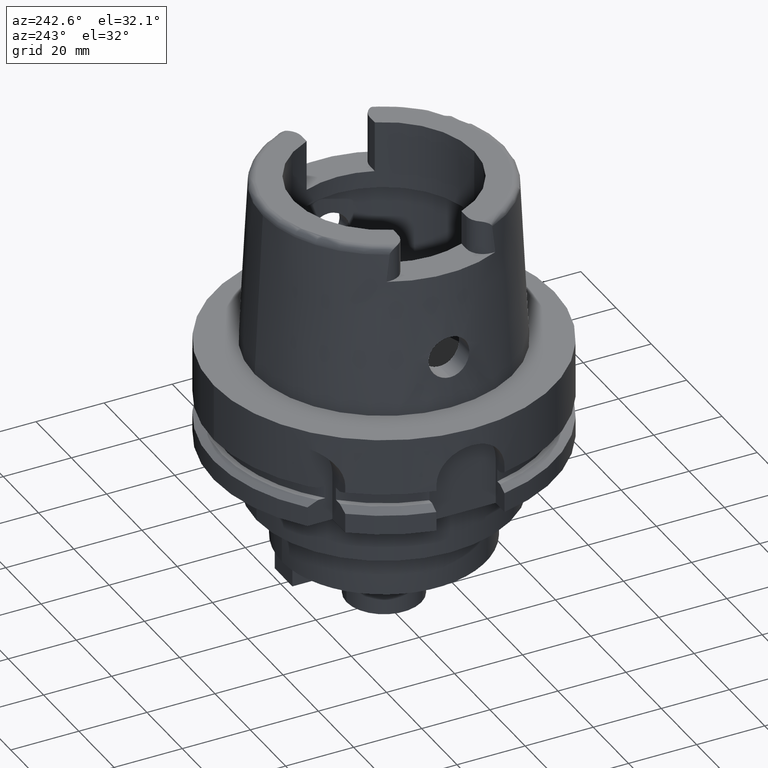
[diagram: clean part render]
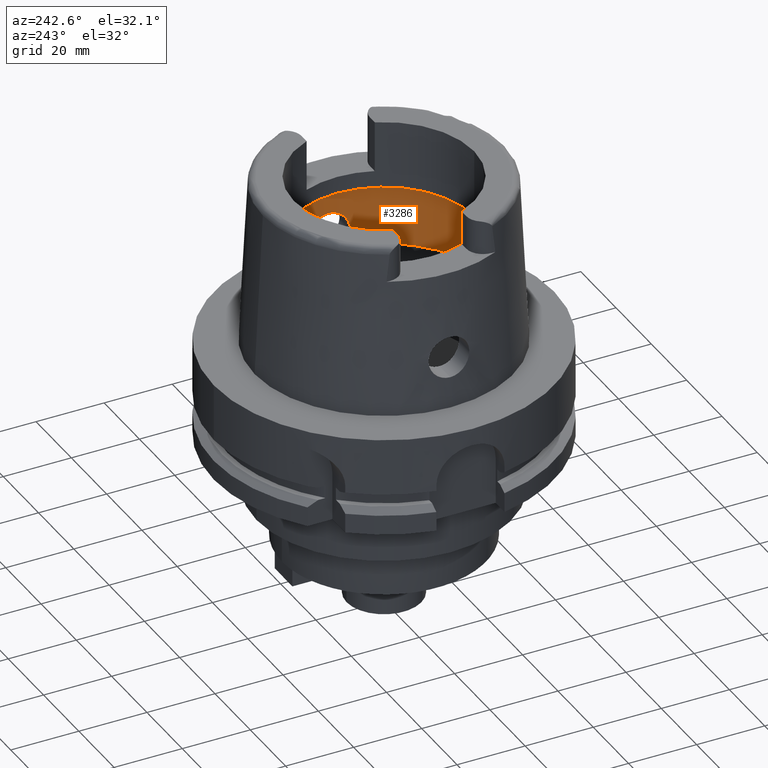
[diagram: same view with one face highlighted and labeled with its STEP entity id]
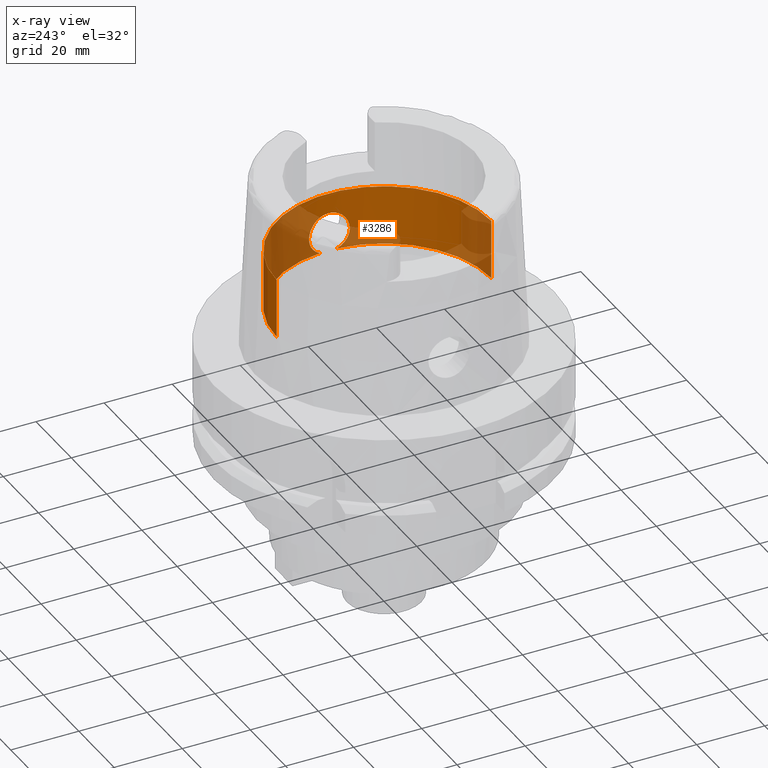
[diagram: x-ray of the same camera — body ghosted, the highlighted face saturated]
A machine part, auxiliary view. The second image highlights one B-rep face of the part: STEP entity #3286.
The next image is the same camera in x-ray: the body ghosted, the highlighted face saturated — about 41% of this face is hidden behind the body in this view.
In plain terms, the highlighted cylindrical surface (partial cylindrical patch) has radius 31.5 mm, axis along (0, 0, 1).
Its self-contained STEP definition (entity closure, byte-faithful):
#540=CARTESIAN_POINT('',(0.E0,0.E0,2.711662432703E1));
#541=DIRECTION('',(0.E0,0.E0,1.E0));
#542=DIRECTION('',(0.E0,-1.E0,0.E0));
#543=AXIS2_PLACEMENT_3D('',#540,#541,#542);
#589=DIRECTION('',(0.E0,4.980251297750E-14,1.E0));
#590=VECTOR('',#589,1.762E1);
#591=CARTESIAN_POINT('',(0.E0,-3.15E1,9.496624327026E0));
#592=LINE('',#591,#590);
#690=CARTESIAN_POINT('',(0.E0,0.E0,9.496624327026E0));
#691=DIRECTION('',(0.E0,0.E0,-1.E0));
#692=DIRECTION('',(9.971171061384E-1,-7.587803796965E-2,0.E0));
#693=AXIS2_PLACEMENT_3D('',#690,#691,#692);
#714=CARTESIAN_POINT('',(0.E0,0.E0,9.496624327026E0));
#715=DIRECTION('',(0.E0,0.E0,-1.E0));
#716=DIRECTION('',(0.E0,1.E0,0.E0));
#717=AXIS2_PLACEMENT_3D('',#714,#715,#716);
#739=CARTESIAN_POINT('',(3.140918884336E1,-2.390158196044E0,9.496624327026E0));
#740=CARTESIAN_POINT('',(3.137370312036E1,-2.856477863367E0,9.699150529317E0));
#741=CARTESIAN_POINT('',(3.128859458119E1,-3.707412876181E0,1.020431882019E1));
#742=CARTESIAN_POINT('',(3.113926066382E1,-4.784627919914E0,1.127555019703E1));
#743=CARTESIAN_POINT('',(3.100879776263E1,-5.551612681812E0,1.256702117098E1));
#744=CARTESIAN_POINT('',(3.092772269701E1,-5.978311389254E0,1.399886092051E1));
#745=CARTESIAN_POINT('',(3.091521048198E1,-6.041257588446E0,1.549483242708E1));
#746=CARTESIAN_POINT('',(3.097445191936E1,-5.736553616047E0,1.695990507440E1));
#747=CARTESIAN_POINT('',(3.109228505274E1,-5.074504366827E0,1.831806352372E1));
#748=CARTESIAN_POINT('',(3.123925358136E1,-4.095840233768E0,1.946955456567E1));
#749=CARTESIAN_POINT('',(3.137858544291E1,-2.868827681278E0,2.034071145983E1));
#750=CARTESIAN_POINT('',(3.147663714279E1,-1.469376456318E0,2.087911052173E1));
#751=CARTESIAN_POINT('',(3.15E1,-4.998497493267E-1,2.1E1));
#752=CARTESIAN_POINT('',(3.15E1,0.E0,2.1E1));
#757=CARTESIAN_POINT('',(3.15E1,0.E0,2.1E1));
#758=CARTESIAN_POINT('',(3.15E1,5.033576914937E-1,2.1E1));
#759=CARTESIAN_POINT('',(3.147630930227E1,1.478664365038E0,2.087743277308E1));
#760=CARTESIAN_POINT('',(3.137729924531E1,2.883343394761E0,2.033342320483E1));
#761=CARTESIAN_POINT('',(3.123721546767E1,4.111250775499E0,1.945577468142E1));
#762=CARTESIAN_POINT('',(3.109016398764E1,5.087244519043E0,1.829870645567E1));
#763=CARTESIAN_POINT('',(3.097303361381E1,5.744032363056E0,1.693770648550E1));
#764=CARTESIAN_POINT('',(3.091488830673E1,6.042871183868E0,1.547277542369E1));
#765=CARTESIAN_POINT('',(3.092842006262E1,5.974770125388E0,1.397946949059E1));
#766=CARTESIAN_POINT('',(3.101001757234E1,5.544881644942E0,1.255256424637E1));
#767=CARTESIAN_POINT('',(3.114038345159E1,4.777254906822E0,1.126678843558E1));
#768=CARTESIAN_POINT('',(3.128913788071E1,3.702452680714E0,1.020106855233E1));
#769=CARTESIAN_POINT('',(3.137385231715E1,2.854517260859E0,9.698299024635E0));
#770=CARTESIAN_POINT('',(3.140918884336E1,2.390158196044E0,9.496624327026E0));
#775=DIRECTION('',(0.E0,-4.980251297750E-14,1.E0));
#776=VECTOR('',#775,1.762E1);
#777=CARTESIAN_POINT('',(0.E0,3.15E1,9.496624327026E0));
#778=LINE('',#777,#776);
#2543=CARTESIAN_POINT('',(0.E0,3.15E1,2.711662432703E1));
#2544=VERTEX_POINT('',#2543);
#2545=CARTESIAN_POINT('',(0.E0,-3.15E1,2.711662432703E1));
#2546=VERTEX_POINT('',#2545);
#2549=CARTESIAN_POINT('',(0.E0,-3.15E1,9.496624327026E0));
#2550=VERTEX_POINT('',#2549);
#2551=CARTESIAN_POINT('',(0.E0,3.15E1,9.496624327026E0));
#2552=VERTEX_POINT('',#2551);
#2557=VERTEX_POINT('',#739);
#2558=VERTEX_POINT('',#752);
#2560=VERTEX_POINT('',#770);
#3271=CARTESIAN_POINT('',(0.E0,0.E0,-8.44E1));
#3272=DIRECTION('',(0.E0,0.E0,1.E0));
#3273=DIRECTION('',(0.E0,1.E0,0.E0));
#3274=AXIS2_PLACEMENT_3D('',#3271,#3272,#3273);
#3275=CYLINDRICAL_SURFACE('',#3274,3.15E1);
#3276=ORIENTED_EDGE('',*,*,#3260,.T.);
#3278=ORIENTED_EDGE('',*,*,#3277,.T.);
#3279=ORIENTED_EDGE('',*,*,#3248,.F.);
#3280=ORIENTED_EDGE('',*,*,#3178,.T.);
#3281=ORIENTED_EDGE('',*,*,#3148,.F.);
#3282=ORIENTED_EDGE('',*,*,#3175,.F.);
#3283=ORIENTED_EDGE('',*,*,#3242,.F.);
#3284=EDGE_LOOP('',(#3276,#3278,#3279,#3280,#3281,#3282,#3283));
#3285=FACE_OUTER_BOUND('',#3284,.F.);
#544=CIRCLE('',#543,3.15E1);
#694=CIRCLE('',#693,3.15E1);
#718=CIRCLE('',#717,3.15E1);
#753=B_SPLINE_CURVE_WITH_KNOTS('',3,(#739,#740,#741,#742,#743,#744,#745,#746,
#747,#748,#749,#750,#751,#752),.UNSPECIFIED.,.F.,.F.,(4,1,1,1,1,1,1,1,1,1,1,4),(
0.E0,9.090909090909E-2,1.818181818182E-1,2.727272727273E-1,3.636363636364E-1,
4.545454545455E-1,5.454545454545E-1,6.363636363636E-1,7.272727272727E-1,
8.181818181818E-1,9.090909090909E-1,1.E0),.UNSPECIFIED.);
#771=B_SPLINE_CURVE_WITH_KNOTS('',3,(#757,#758,#759,#760,#761,#762,#763,#764,
#765,#766,#767,#768,#769,#770),.UNSPECIFIED.,.F.,.F.,(4,1,1,1,1,1,1,1,1,1,1,4),(
0.E0,9.090909090909E-2,1.818181818182E-1,2.727272727273E-1,3.636363636364E-1,
4.545454545455E-1,5.454545454545E-1,6.363636363636E-1,7.272727272727E-1,
8.181818181818E-1,9.090909090909E-1,1.E0),.UNSPECIFIED.);
#3148=EDGE_CURVE('',#2546,#2544,#544,.T.);
#3175=EDGE_CURVE('',#2550,#2546,#592,.T.);
#3178=EDGE_CURVE('',#2552,#2544,#778,.T.);
#3242=EDGE_CURVE('',#2557,#2550,#694,.T.);
#3248=EDGE_CURVE('',#2552,#2560,#718,.T.);
#3260=EDGE_CURVE('',#2557,#2558,#753,.T.);
#3277=EDGE_CURVE('',#2558,#2560,#771,.T.);
#3286=ADVANCED_FACE('',(#3285),#3275,.F.);